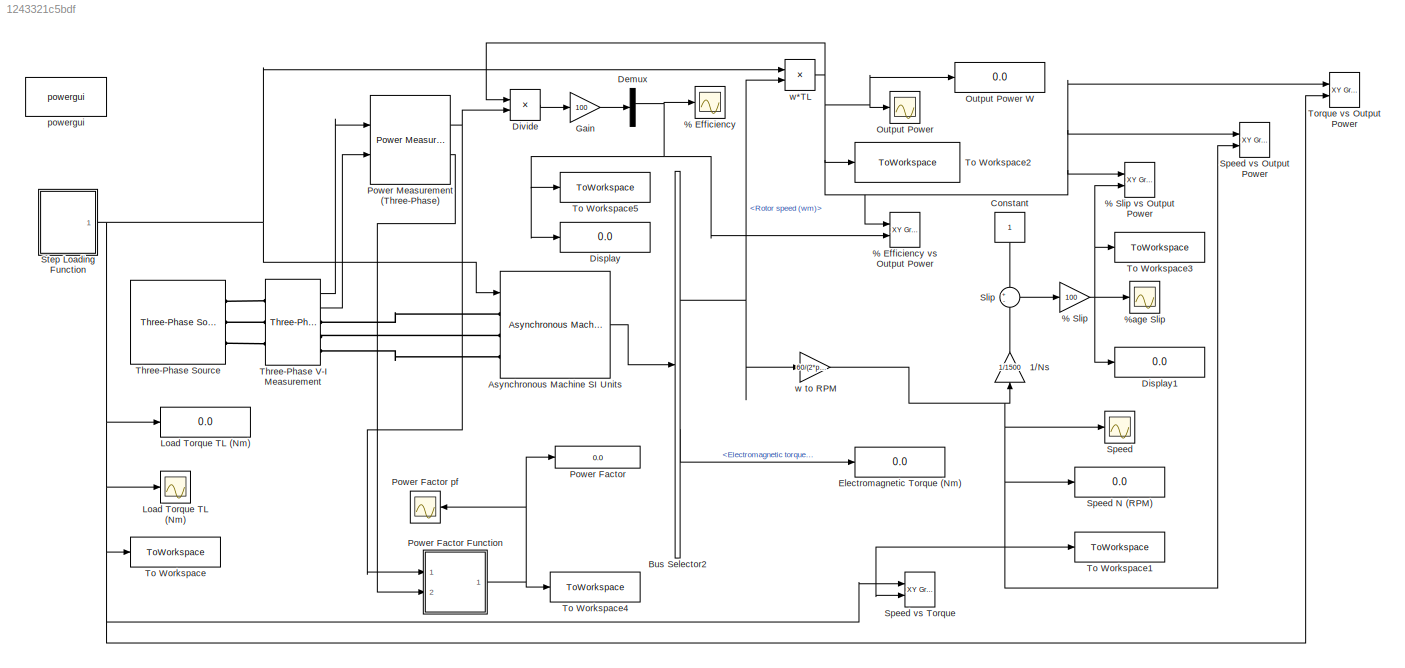
MODEL slx_1243321c5bdf
KIND model
CONFIG AbsTol = auto
CONFIG EnableMultiTasking = off
CONFIG FixedStep = auto
CONFIG MaxStep = auto
CONFIG MinStep = auto
CONFIG RelTol = 1e-3
CONFIG SampleTimeConstraint = Unconstrained
CONFIG Solver = VariableStepAuto
CONFIG SolverName = VariableStepAuto
CONFIG StartTime = 0.0
CONFIG StopTime = 15.0
BLOCK [Scope] % Efficiency
  Floating = off
  NumInputPorts = 1
  Ports = [1]
  ScopeSpecificationString = Simulink.scopes.TimeScopeBlockCfg('CurrentConfiguration', extmgr.ConfigurationSet(extmgr.Configuration('Core','General UI',true),extmgr.Configuration('Core','Source UI',true),extmgr.Configuration('Sources','WiredSimulink',true,'DataLoggingVariableName','ScopeData4'),extmgr.Configuration('Visuals','Time Domain',true,'SerializedDisplays',{struct('MinYLimReal','-100336909049501920.00000','MaxYLimReal...<+1553ch>
BLOCK [Reference] % Efficiency vs Output Power  REF=simulink/Sinks/XY Graph
  Ports = [2]
  SourceBlock = simulink/Sinks/XY Graph
  SourceProductBaseCode = SL
  SourceProductName = Simulink
  SourceType = XY scope.
BLOCK [Gain] % Slip
  Gain = 100
  OutDataTypeStr = Inherit: Inherit via internal rule
  ParamDataTypeStr = Inherit: Inherit via internal rule
  SaturateOnIntegerOverflow = off
BLOCK [Reference] % Slip vs Output Power  REF=simulink/Sinks/XY Graph
  Ports = [2]
  SourceBlock = simulink/Sinks/XY Graph
  SourceProductBaseCode = SL
  SourceProductName = Simulink
  SourceType = XY scope.
BLOCK [Scope] %age Slip
  Floating = off
  NumInputPorts = 1
  Ports = [1]
  ScopeSpecificationString = Simulink.scopes.TimeScopeBlockCfg('CurrentConfiguration', extmgr.ConfigurationSet(extmgr.Configuration('Core','General UI',true),extmgr.Configuration('Core','Source UI',true),extmgr.Configuration('Sources','WiredSimulink',true,'DataLoggingVariableName','ScopeData1'),extmgr.Configuration('Visuals','Time Domain',true,'SerializedDisplays',{struct('MinYLimReal','-30.70334','MaxYLimReal','39.79279','YL...<+1446ch>
BLOCK [Gain] 1//Ns
  Gain = 1/1500
  OutDataTypeStr = Inherit: Inherit via internal rule
  ParamDataTypeStr = Inherit: Inherit via internal rule
  SaturateOnIntegerOverflow = off
BLOCK [Reference] Asynchronous Machine SI Units  REF=powerlib/Machines/Asynchronous Machine
SI Units
  Ports = [1, 1, 0, 0, 0, 3]
  SourceBlock = powerlib/Machines/Asynchronous Machine\nSI Units
  SourceProductBaseCode = PS
  SourceProductName = Simscape Electrical
  SourceType = Asynchronous Machine
BLOCK [BusSelector] Bus Selector2
  OutputAsBus = off
  OutputSignals = Mechanical.Rotor speed (wm),Mechanical.Electromagnetic torque Te (N*m)
  Ports = [1, 2]
BLOCK [Constant] Constant
BLOCK [Demux] Demux
  DisplayOption = bar
  Ports = [1, 4]
BLOCK [Display] Display
  Decimation = 1
  Ports = [1]
BLOCK [Display] Display1
  Decimation = 1
  Ports = [1]
BLOCK [Product] Divide
  InputSameDT = off
  Inputs = */
  OutDataTypeStr = Inherit: Inherit via internal rule
  Ports = [2, 1]
  RndMeth = Floor
  SaturateOnIntegerOverflow = off
BLOCK [Display] Electromagnetic Torque (Nm)
  Decimation = 1
  Ports = [1]
BLOCK [Gain] Gain
  Gain = 100
  OutDataTypeStr = Inherit: Inherit via internal rule
  ParamDataTypeStr = Inherit: Inherit via internal rule
  SaturateOnIntegerOverflow = off
BLOCK [Display] Load Torque TL (Nm)
  Decimation = 1
  Ports = [1]
BLOCK [Scope] Load Torque TL (Nm) 
  Floating = off
  NumInputPorts = 1
  Ports = [1]
  ScopeSpecificationString = Simulink.scopes.TimeScopeBlockCfg('CurrentConfiguration', extmgr.ConfigurationSet(extmgr.Configuration('Core','General UI',true),extmgr.Configuration('Core','Source UI',true),extmgr.Configuration('Sources','WiredSimulink',true,'DataLoggingVariableName','ScopeData2'),extmgr.Configuration('Visuals','Time Domain',true,'SerializedDisplays',{struct('MinYLimReal','-3.9975','MaxYLimReal','35.9775','YLabe...<+1378ch>
BLOCK [Scope] Output Power
  Floating = off
  NumInputPorts = 1
  Ports = [1]
  ScopeSpecificationString = Simulink.scopes.TimeScopeBlockCfg('CurrentConfiguration', extmgr.ConfigurationSet(extmgr.Configuration('Core','General UI',true),extmgr.Configuration('Core','Source UI',true),extmgr.Configuration('Sources','WiredSimulink',true,'DataLoggingVariableName','ScopeData1'),extmgr.Configuration('Visuals','Time Domain',true,'SerializedDisplays',{struct('MinYLimReal','-598.45799','MaxYLimReal','5386.12191',...<+1439ch>
BLOCK [Display] Output Power W
  Decimation = 1
  Ports = [1]
BLOCK [Display] Power Factor
  Decimation = 1
  Ports = [1]
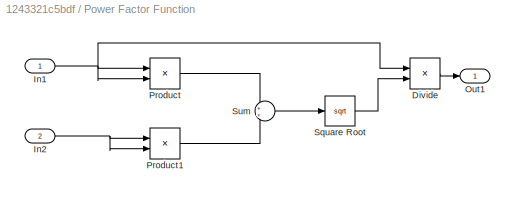
BLOCK [SubSystem] Power Factor Function
  Ports = [2, 1]
  RequestExecContextInheritance = off
BLOCK [Product] Power Factor Function/Divide
  InputSameDT = off
  Inputs = */
  OutDataTypeStr = Inherit: Inherit via internal rule
  Ports = [2, 1]
  RndMeth = Floor
  SaturateOnIntegerOverflow = off
BLOCK [Inport] Power Factor Function/In1
  IconDisplay = Port number
BLOCK [Inport] Power Factor Function/In2
  IconDisplay = Port number
  Port = 2
BLOCK [Outport] Power Factor Function/Out1
  IconDisplay = Port number
BLOCK [Product] Power Factor Function/Product
  InputSameDT = off
  OutDataTypeStr = Inherit: Inherit via internal rule
  Ports = [2, 1]
  RndMeth = Floor
  SaturateOnIntegerOverflow = off
BLOCK [Product] Power Factor Function/Product1
  InputSameDT = off
  OutDataTypeStr = Inherit: Inherit via internal rule
  Ports = [2, 1]
  RndMeth = Floor
  SaturateOnIntegerOverflow = off
BLOCK [Sqrt] Power Factor Function/Square Root
BLOCK [Sum] Power Factor Function/Sum
  IconShape = round
  InputSameDT = off
  OutDataTypeStr = Inherit: Inherit via internal rule
  Ports = [2, 1]
  SaturateOnIntegerOverflow = off
BLOCK [Scope] Power Factor pf
  Floating = off
  NumInputPorts = 1
  Ports = [1]
  ScopeSpecificationString = Simulink.scopes.TimeScopeBlockCfg('CurrentConfiguration', extmgr.ConfigurationSet(extmgr.Configuration('Core','General UI',true),extmgr.Configuration('Core','Source UI',true),extmgr.Configuration('Sources','WiredSimulink',true,'DataLoggingVariableName','ScopeData2'),extmgr.Configuration('Visuals','Time Domain',true),extmgr.Configuration('Tools','Plot Navigation',true),extmgr.Configuration('Tools',...<+40ch>
BLOCK [Reference] Power Measurement (Three-Phase)  REF=eePowerMeasurement/Power Measurement
(Three-Phase)
  Ports = [2, 2]
  SourceBlock = eePowerMeasurement/Power Measurement\n(Three-Phase)
  SourceProductBaseCode = PS
  SourceProductName = Simscape Electrical
  SourceType = Power Measurement (Three-Phase)
BLOCK [Sum] Slip
  IconShape = round
  InputSameDT = off
  Inputs = +-
  OutDataTypeStr = Inherit: Inherit via internal rule
  Ports = [2, 1]
  SaturateOnIntegerOverflow = off
BLOCK [Scope] Speed
  Floating = off
  NumInputPorts = 1
  Ports = [1]
  ScopeSpecificationString = Simulink.scopes.TimeScopeBlockCfg('CurrentConfiguration', extmgr.ConfigurationSet(extmgr.Configuration('Core','General UI',true),extmgr.Configuration('Core','Source UI',true),extmgr.Configuration('Sources','WiredSimulink',true,'DataLoggingVariableName','ScopeData3'),extmgr.Configuration('Visuals','Time Domain',true,'SerializedDisplays',{struct('MinYLimReal','901.18496','MaxYLimReal','1962.78434','...<+1414ch>
BLOCK [Display] Speed N (RPM)
  Decimation = 1
  Ports = [1]
BLOCK [Reference] Speed vs Output Power  REF=simulink/Sinks/XY Graph
  Ports = [2]
  SourceBlock = simulink/Sinks/XY Graph
  SourceProductBaseCode = SL
  SourceProductName = Simulink
  SourceType = XY scope.
BLOCK [Reference] Speed vs Torque  REF=simulink/Sinks/XY Graph
  Ports = [2]
  SourceBlock = simulink/Sinks/XY Graph
  SourceProductBaseCode = SL
  SourceProductName = Simulink
  SourceType = XY scope.
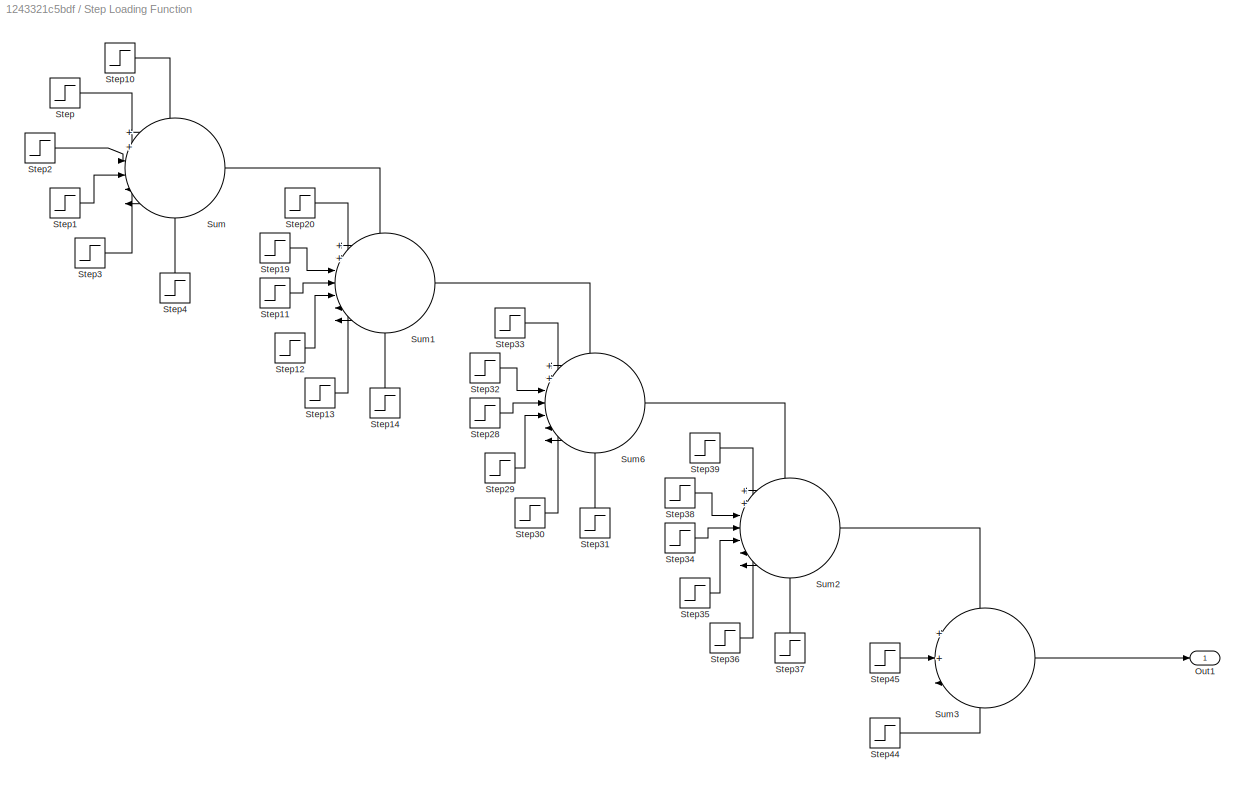
BLOCK [SubSystem] Step Loading Function
  Ports = [0, 1]
  RequestExecContextInheritance = off
BLOCK [Outport] Step Loading Function/Out1
  IconDisplay = Port number
BLOCK [Step] Step Loading Function/Step
  After = 1.23
  SampleTime = 0
  Time = 1.5
BLOCK [Step] Step Loading Function/Step1
  After = 1.23
  SampleTime = 0
  Time = 2.5
BLOCK [Step] Step Loading Function/Step10
  After = 1.23
  SampleTime = 0
BLOCK [Step] Step Loading Function/Step11
  After = 1.23
  SampleTime = 0
  Time = 5
BLOCK [Step] Step Loading Function/Step12
  After = 1.23
  SampleTime = 0
  Time = 5.5
BLOCK [Step] Step Loading Function/Step13
  After = 1.23
  SampleTime = 0
  Time = 6
BLOCK [Step] Step Loading Function/Step14
  After = 1.23
  SampleTime = 0
  Time = 6.5
BLOCK [Step] Step Loading Function/Step19
  After = 1.23
  SampleTime = 0
  Time = 4.5
BLOCK [Step] Step Loading Function/Step2
  After = 1.23
  SampleTime = 0
  Time = 2
BLOCK [Step] Step Loading Function/Step20
  After = 1.23
  SampleTime = 0
  Time = 4
BLOCK [Step] Step Loading Function/Step28
  After = 1.23
  SampleTime = 0
  Time = 8
BLOCK [Step] Step Loading Function/Step29
  After = 1.23
  SampleTime = 0
  Time = 8.5
BLOCK [Step] Step Loading Function/Step3
  After = 1.23
  SampleTime = 0
  Time = 3
BLOCK [Step] Step Loading Function/Step30
  After = 1.23
  SampleTime = 0
  Time = 9
BLOCK [Step] Step Loading Function/Step31
  After = 1.23
  SampleTime = 0
  Time = 9.5
BLOCK [Step] Step Loading Function/Step32
  After = 1.23
  SampleTime = 0
  Time = 7.5
BLOCK [Step] Step Loading Function/Step33
  After = 1.23
  SampleTime = 0
  Time = 7
BLOCK [Step] Step Loading Function/Step34
  After = 1.23
  SampleTime = 0
  Time = 11
BLOCK [Step] Step Loading Function/Step35
  After = 1.23
  SampleTime = 0
  Time = 11.5
BLOCK [Step] Step Loading Function/Step36
  After = 1.23
  SampleTime = 0
  Time = 12
BLOCK [Step] Step Loading Function/Step37
  After = 1.23
  SampleTime = 0
  Time = 12.5
BLOCK [Step] Step Loading Function/Step38
  After = 1.23
  SampleTime = 0
  Time = 10.5
BLOCK [Step] Step Loading Function/Step39
  After = 1.23
  SampleTime = 0
  Time = 10
BLOCK [Step] Step Loading Function/Step4
  After = 1.23
  SampleTime = 0
  Time = 3.5
BLOCK [Step] Step Loading Function/Step44
  After = 1.23
  SampleTime = 0
  Time = 13.5
BLOCK [Step] Step Loading Function/Step45
  After = 1.23
  SampleTime = 0
  Time = 13
BLOCK [Sum] Step Loading Function/Sum
  IconShape = round
  InputSameDT = off
  Inputs = 6
  OutDataTypeStr = Inherit: Inherit via internal rule
  Ports = [6, 1]
  SaturateOnIntegerOverflow = off
BLOCK [Sum] Step Loading Function/Sum1
  IconShape = round
  InputSameDT = off
  Inputs = 7
  OutDataTypeStr = Inherit: Inherit via internal rule
  Ports = [7, 1]
  SaturateOnIntegerOverflow = off
BLOCK [Sum] Step Loading Function/Sum2
  IconShape = round
  InputSameDT = off
  Inputs = 7
  OutDataTypeStr = Inherit: Inherit via internal rule
  Ports = [7, 1]
  SaturateOnIntegerOverflow = off
BLOCK [Sum] Step Loading Function/Sum3
  IconShape = round
  InputSameDT = off
  Inputs = 3
  OutDataTypeStr = Inherit: Inherit via internal rule
  Ports = [3, 1]
  SaturateOnIntegerOverflow = off
BLOCK [Sum] Step Loading Function/Sum6
  IconShape = round
  InputSameDT = off
  Inputs = 7
  OutDataTypeStr = Inherit: Inherit via internal rule
  Ports = [7, 1]
  SaturateOnIntegerOverflow = off
BLOCK [Reference] Three-Phase Source  REF=powerlib/Electrical
Sources/Three-Phase Source
  Ports = [0, 0, 0, 0, 0, 0, 3]
  SourceBlock = powerlib/Electrical\nSources/Three-Phase Source
  SourceProductBaseCode = PS
  SourceProductName = Simscape Electrical
  SourceType = Three-Phase Source
BLOCK [Reference] Three-Phase V-I Measurement  REF=powerlib/Measurements/Three-Phase
V-I Measurement
  Ports = [0, 2, 0, 0, 0, 3, 3]
  SourceBlock = powerlib/Measurements/Three-Phase\nV-I Measurement
  SourceProductBaseCode = PS
  SourceProductName = Simscape Electrical
  SourceType = Three-Phase VI Measurement
BLOCK [ToWorkspace] To Workspace
  Decimation = 2
  FixptAsFi = on
  MaxDataPoints = inf
  Ports = [1]
  SampleTime = 0.1
  VariableName = Torque
BLOCK [ToWorkspace] To Workspace1
  Decimation = 2
  FixptAsFi = on
  MaxDataPoints = inf
  Ports = [1]
  SampleTime = 0.1
  VariableName = Speed
BLOCK [ToWorkspace] To Workspace2
  Decimation = 2
  FixptAsFi = on
  MaxDataPoints = inf
  Ports = [1]
  SampleTime = 0.1
  VariableName = OutputPower
BLOCK [ToWorkspace] To Workspace3
  Decimation = 2
  FixptAsFi = on
  MaxDataPoints = inf
  Ports = [1]
  SampleTime = 0.1
  VariableName = Slip
BLOCK [ToWorkspace] To Workspace4
  Decimation = 2
  FixptAsFi = on
  MaxDataPoints = inf
  Ports = [1]
  SampleTime = 0.1
  VariableName = PowerFactor
BLOCK [ToWorkspace] To Workspace5
  Decimation = 2
  FixptAsFi = on
  MaxDataPoints = inf
  Ports = [1]
  SampleTime = 0.1
  VariableName = Efficiency
BLOCK [Reference] Torque vs Output Power  REF=simulink/Sinks/XY Graph
  Ports = [2]
  SourceBlock = simulink/Sinks/XY Graph
  SourceProductBaseCode = SL
  SourceProductName = Simulink
  SourceType = XY scope.
BLOCK [Reference] powergui  REF=powerlib/powergui
  Ports = []
  Priority = 1
  SourceBlock = powerlib/powergui
  SourceProductBaseCode = PS
  SourceProductName = Simscape Electrical
  SourceType = PSB option menu block
BLOCK [Gain] w to RPM
  Gain = 60/(2*pi)
  OutDataTypeStr = Inherit: Inherit via internal rule
  ParamDataTypeStr = Inherit: Inherit via internal rule
  SaturateOnIntegerOverflow = off
BLOCK [Product] w*TL
  InputSameDT = off
  OutDataTypeStr = Inherit: Inherit via internal rule
  Ports = [2, 1]
  RndMeth = Floor
  SaturateOnIntegerOverflow = off
NET % Slip:1 -> % Slip vs Output Power:2, %age Slip:1, Display1:1, To Workspace3:1
LINE 1//Ns:1 -> Slip:2
LINE Asynchronous Machine SI Units:1 -> Bus Selector2:1
NET Bus Selector2:1 -> w to RPM:1, w*TL:2
LINE Bus Selector2:2 -> Electromagnetic Torque (Nm):1
LINE Constant:1 -> Slip:1
NET Demux:2 -> % Efficiency vs Output Power:2, % Efficiency:1, Display:1, To Workspace5:1
LINE Divide:1 -> Gain:1
LINE Gain:1 -> Demux:1
LINE Power Factor Function/Divide:1 -> Power Factor Function/Out1:1
NET Power Factor Function/In1:1 -> Power Factor Function/Divide:1, Power Factor Function/Product:1, Power Factor Function/Product:2
NET Power Factor Function/In2:1 -> Power Factor Function/Product1:1, Power Factor Function/Product1:2
LINE Power Factor Function/Product1:1 -> Power Factor Function/Sum:2
LINE Power Factor Function/Product:1 -> Power Factor Function/Sum:1
LINE Power Factor Function/Square Root:1 -> Power Factor Function/Divide:2
LINE Power Factor Function/Sum:1 -> Power Factor Function/Square Root:1
NET Power Factor Function:1 -> Power Factor pf:1, Power Factor:1, To Workspace4:1
NET Power Measurement (Three-Phase):1 -> Divide:2, Power Factor Function:1
LINE Power Measurement (Three-Phase):2 -> Power Factor Function:2
LINE Slip:1 -> % Slip:1
LINE Step Loading Function/Step10:1 -> Step Loading Function/Sum:1
LINE Step Loading Function/Step11:1 -> Step Loading Function/Sum1:4
LINE Step Loading Function/Step12:1 -> Step Loading Function/Sum1:5
LINE Step Loading Function/Step13:1 -> Step Loading Function/Sum1:6
LINE Step Loading Function/Step14:1 -> Step Loading Function/Sum1:7
LINE Step Loading Function/Step19:1 -> Step Loading Function/Sum1:3
LINE Step Loading Function/Step1:1 -> Step Loading Function/Sum:4
LINE Step Loading Function/Step20:1 -> Step Loading Function/Sum1:2
LINE Step Loading Function/Step28:1 -> Step Loading Function/Sum6:4
LINE Step Loading Function/Step29:1 -> Step Loading Function/Sum6:5
LINE Step Loading Function/Step2:1 -> Step Loading Function/Sum:3
LINE Step Loading Function/Step30:1 -> Step Loading Function/Sum6:6
LINE Step Loading Function/Step31:1 -> Step Loading Function/Sum6:7
LINE Step Loading Function/Step32:1 -> Step Loading Function/Sum6:3
LINE Step Loading Function/Step33:1 -> Step Loading Function/Sum6:2
LINE Step Loading Function/Step34:1 -> Step Loading Function/Sum2:4
LINE Step Loading Function/Step35:1 -> Step Loading Function/Sum2:5
LINE Step Loading Function/Step36:1 -> Step Loading Function/Sum2:6
LINE Step Loading Function/Step37:1 -> Step Loading Function/Sum2:7
LINE Step Loading Function/Step38:1 -> Step Loading Function/Sum2:3
LINE Step Loading Function/Step39:1 -> Step Loading Function/Sum2:2
LINE Step Loading Function/Step3:1 -> Step Loading Function/Sum:5
LINE Step Loading Function/Step44:1 -> Step Loading Function/Sum3:3
LINE Step Loading Function/Step45:1 -> Step Loading Function/Sum3:2
LINE Step Loading Function/Step4:1 -> Step Loading Function/Sum:6
LINE Step Loading Function/Step:1 -> Step Loading Function/Sum:2
LINE Step Loading Function/Sum1:1 -> Step Loading Function/Sum6:1
LINE Step Loading Function/Sum2:1 -> Step Loading Function/Sum3:1
LINE Step Loading Function/Sum3:1 -> Step Loading Function/Out1:1
LINE Step Loading Function/Sum6:1 -> Step Loading Function/Sum2:1
LINE Step Loading Function/Sum:1 -> Step Loading Function/Sum1:1
NET Step Loading Function:1 -> Asynchronous Machine SI Units:1, Load Torque TL (Nm) :1, Load Torque TL (Nm):1, Speed vs Torque:1, To Workspace:1, Torque vs Output Power:2, w*TL:1
LINE Three-Phase V-I Measurement:1 -> Power Measurement (Three-Phase):1
LINE Three-Phase V-I Measurement:2 -> Power Measurement (Three-Phase):2
NET w to RPM:1 -> 1//Ns:1, Speed N (RPM):1, Speed vs Output Power:2, Speed vs Torque:2, Speed:1, To Workspace1:1
NET w*TL:1 -> % Efficiency vs Output Power:1, % Slip vs Output Power:1, Divide:1, Output Power W:1, Output Power:1, Speed vs Output Power:1, To Workspace2:1, Torque vs Output Power:1
PLINE Asynchronous Machine SI Units:LConn1 -- Three-Phase V-I Measurement:RConn1
PLINE Asynchronous Machine SI Units:LConn2 -- Three-Phase V-I Measurement:RConn2
PLINE Asynchronous Machine SI Units:LConn3 -- Three-Phase V-I Measurement:RConn3
PLINE Three-Phase Source:RConn1 -- Three-Phase V-I Measurement:LConn1
PLINE Three-Phase Source:RConn2 -- Three-Phase V-I Measurement:LConn2
PLINE Three-Phase Source:RConn3 -- Three-Phase V-I Measurement:LConn3
note: NET lines group one-source signal fan-out (src -> all destinations, sorted); 1:1 wires keep LINE
